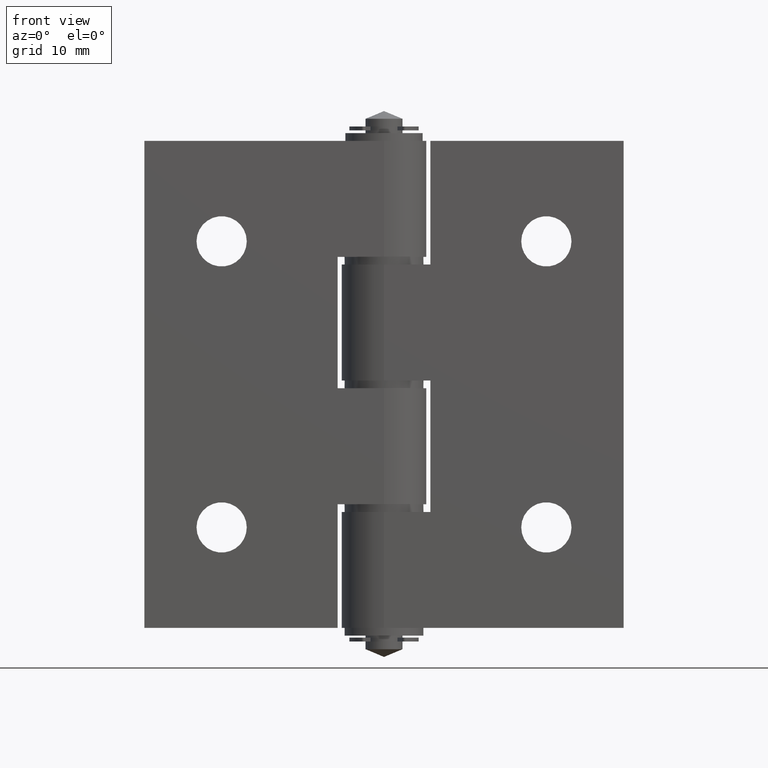
[diagram: clean part render]
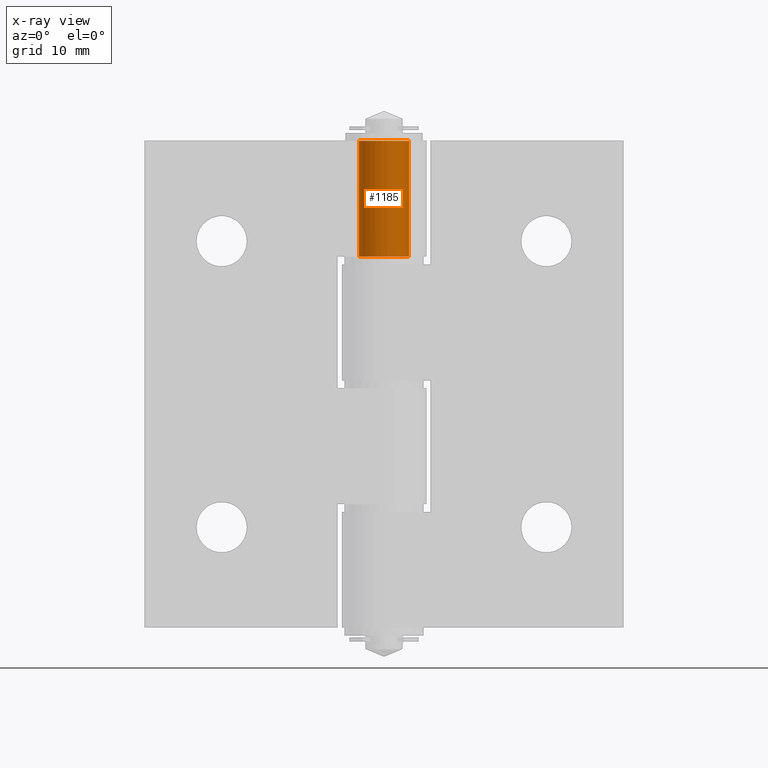
[diagram: x-ray — body ghosted, one internal face saturated and labeled with its STEP entity id]
A machine part, front view, then the same camera in x-ray: the body is ghosted and one INTERNAL B-rep face — a face not visible from any outside direction — is saturated and labeled: STEP entity #1185.
In plain terms, the highlighted cylindrical surface (bore or boss wall) has radius 3.25 mm, axis along (0, 0, -1).
Its self-contained STEP definition (entity closure, byte-faithful):
#79=FACE_BOUND('',#252,.T.);
#172=FACE_OUTER_BOUND('',#251,.T.);
#251=EDGE_LOOP('',(#871));
#252=EDGE_LOOP('',(#872));
#530=CIRCLE('',#1276,3.25);
#531=CIRCLE('',#1277,3.25);
#604=VERTEX_POINT('',#1858);
#605=VERTEX_POINT('',#1860);
#718=EDGE_CURVE('',#604,#604,#530,.T.);
#719=EDGE_CURVE('',#605,#605,#531,.T.);
#871=ORIENTED_EDGE('',*,*,#718,.F.);
#872=ORIENTED_EDGE('',*,*,#719,.F.);
#1149=CYLINDRICAL_SURFACE('',#1275,3.25);
#1185=ADVANCED_FACE('',(#172,#79),#1149,.F.);
#1275=AXIS2_PLACEMENT_3D('',#1857,#1459,#1460);
#1276=AXIS2_PLACEMENT_3D('',#1859,#1461,#1462);
#1277=AXIS2_PLACEMENT_3D('',#1861,#1463,#1464);
#1459=DIRECTION('center_axis',(0.,0.,-1.));
#1460=DIRECTION('ref_axis',(-1.,0.,0.));
#1461=DIRECTION('center_axis',(0.,0.,-1.));
#1462=DIRECTION('ref_axis',(-1.,0.,0.));
#1463=DIRECTION('center_axis',(0.,0.,1.));
#1464=DIRECTION('ref_axis',(-1.,0.,0.));
#1857=CARTESIAN_POINT('Origin',(0.,5.5,0.));
#1858=CARTESIAN_POINT('',(3.25,5.5,0.));
#1859=CARTESIAN_POINT('Origin',(0.,5.5,0.));
#1860=CARTESIAN_POINT('',(3.25,5.5,-15.));
#1861=CARTESIAN_POINT('Origin',(0.,5.5,-15.));